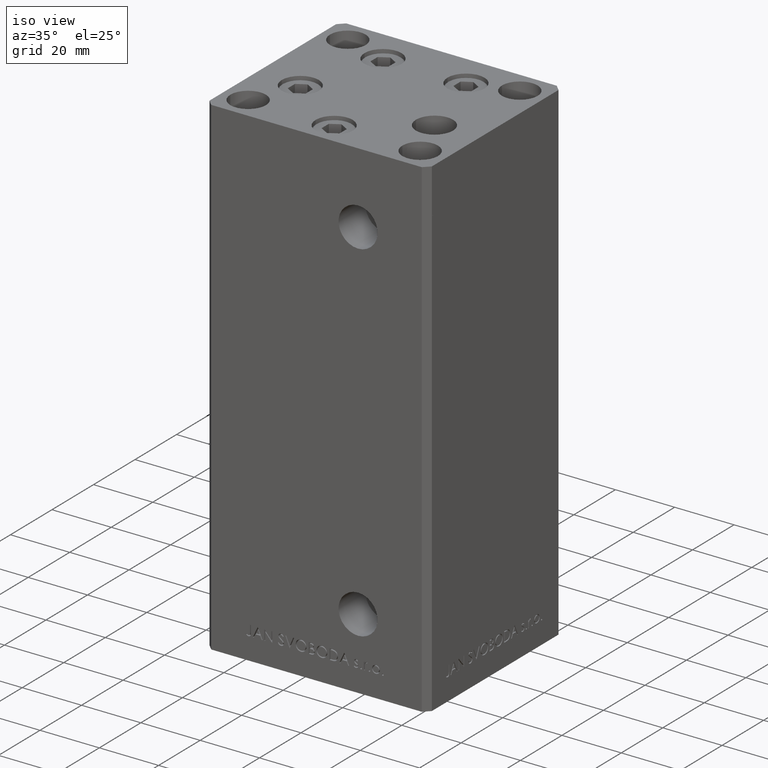
[diagram: clean part render]
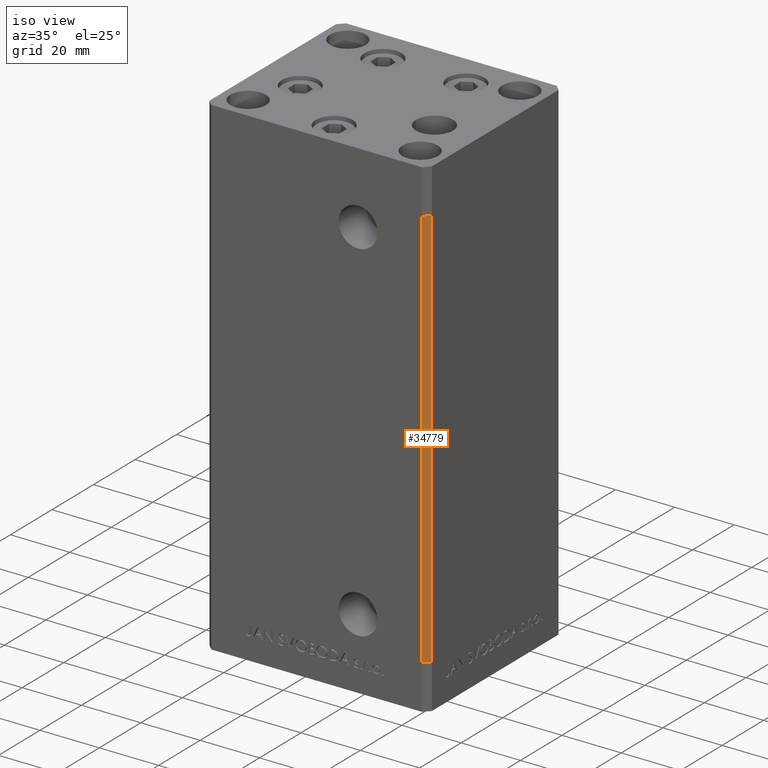
[diagram: same view with one face highlighted and labeled with its STEP entity id]
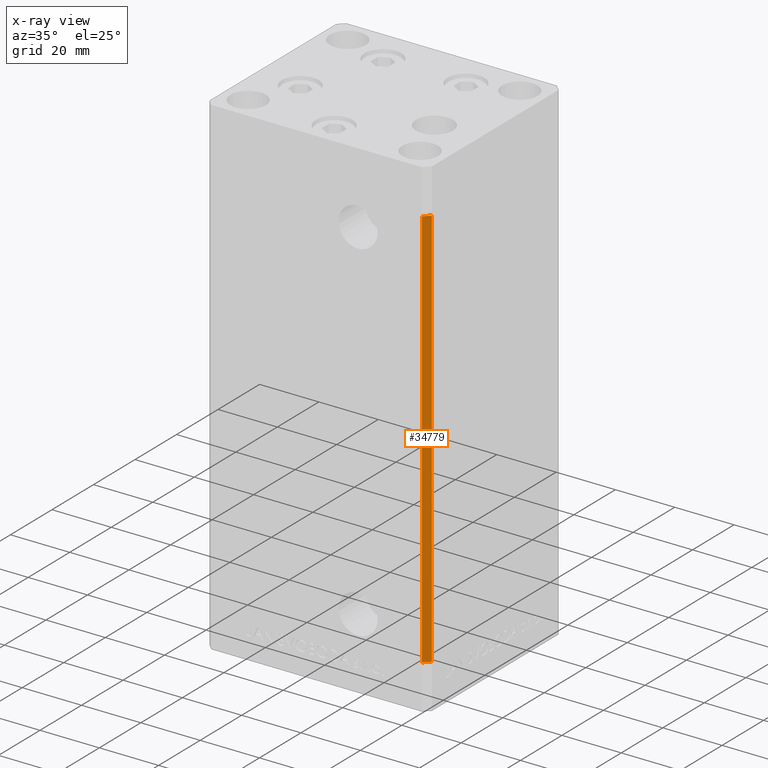
[diagram: x-ray of the same camera — body ghosted, the highlighted face saturated]
A machine part, iso view. The second image highlights one B-rep face of the part: STEP entity #34779.
The next image is the same camera in x-ray: the body ghosted, the highlighted face saturated — about 0% of this face is hidden behind the body in this view.
In plain terms, the highlighted planar face has unit normal (0.7071, -0.7071, 0).
Its self-contained STEP definition (entity closure, byte-faithful):
#341 = PLANE ( 'NONE',  #41028 ) ;
#2957 = VECTOR ( 'NONE', #5416, 1000.000000000000114 ) ;
#4874 = LINE ( 'NONE', #21178, #11842 ) ;
#5416 = DIRECTION ( 'NONE',  ( -0.7071067811865474617, -0.7071067811865474617, 0.000000000000000000 ) ) ;
#5868 = CARTESIAN_POINT ( 'NONE',  ( 35.49999999999999289, -32.50000000000000000, 136.0000000000000000 ) ) ;
#7670 = EDGE_CURVE ( 'NONE', #32386, #17274, #33732, .T. ) ;
#10464 = CARTESIAN_POINT ( 'NONE',  ( 37.49999999999999289, -30.50000000000000000, 0.000000000000000000 ) ) ;
#11377 = EDGE_LOOP ( 'NONE', ( #27302, #38200, #15166, #48495 ) ) ;
#11842 = VECTOR ( 'NONE', #16908, 1000.000000000000000 ) ;
#15166 = ORIENTED_EDGE ( 'NONE', *, *, #25084, .T. ) ;
#16908 = DIRECTION ( 'NONE',  ( -0.000000000000000000, -0.000000000000000000, -1.000000000000000000 ) ) ;
#17274 = VERTEX_POINT ( 'NONE', #18689 ) ;
#17743 = DIRECTION ( 'NONE',  ( -0.7071067811865474617, -0.7071067811865474617, 0.000000000000000000 ) ) ;
#18689 = CARTESIAN_POINT ( 'NONE',  ( 35.49999999999999289, -32.50000000000000000, 0.000000000000000000 ) ) ;
#19688 = DIRECTION ( 'NONE',  ( 0.7071067811865474617, 0.7071067811865474617, 0.000000000000000000 ) ) ;
#20845 = CARTESIAN_POINT ( 'NONE',  ( 35.49999999999999289, -32.50000000000000000, 136.0000000000000000 ) ) ;
#20981 = LINE ( 'NONE', #47848, #2957 ) ;
#21178 = CARTESIAN_POINT ( 'NONE',  ( 37.49999999999999289, -30.50000000000000000, 136.0000000000000000 ) ) ;
#25084 = EDGE_CURVE ( 'NONE', #47209, #32386, #20981, .T. ) ;
#26249 = EDGE_CURVE ( 'NONE', #47209, #34181, #4874, .T. ) ;
#27302 = ORIENTED_EDGE ( 'NONE', *, *, #39723, .F. ) ;
#30251 = CARTESIAN_POINT ( 'NONE',  ( 37.49999999999999289, -30.50000000000000000, 136.0000000000000000 ) ) ;
#32386 = VERTEX_POINT ( 'NONE', #20845 ) ;
#32534 = VECTOR ( 'NONE', #41274, 1000.000000000000000 ) ;
#33732 = LINE ( 'NONE', #5868, #32534 ) ;
#34181 = VERTEX_POINT ( 'NONE', #37224 ) ;
#34779 = ADVANCED_FACE ( 'NONE', ( #46061 ), #341, .T. ) ;
#36205 = VECTOR ( 'NONE', #17743, 1000.000000000000114 ) ;
#37224 = CARTESIAN_POINT ( 'NONE',  ( 37.49999999999999289, -30.50000000000000000, 0.000000000000000000 ) ) ;
#38200 = ORIENTED_EDGE ( 'NONE', *, *, #26249, .F. ) ;
#39723 = EDGE_CURVE ( 'NONE', #34181, #17274, #49118, .T. ) ;
#41028 = AXIS2_PLACEMENT_3D ( 'NONE', #30251, #46558, #19688 ) ;
#41274 = DIRECTION ( 'NONE',  ( -0.000000000000000000, -0.000000000000000000, -1.000000000000000000 ) ) ;
#46061 = FACE_OUTER_BOUND ( 'NONE', #11377, .T. ) ;
#46558 = DIRECTION ( 'NONE',  ( 0.7071067811865475727, -0.7071067811865475727, 0.000000000000000000 ) ) ;
#46882 = CARTESIAN_POINT ( 'NONE',  ( 37.49999999999999289, -30.50000000000000000, 136.0000000000000000 ) ) ;
#47209 = VERTEX_POINT ( 'NONE', #46882 ) ;
#47848 = CARTESIAN_POINT ( 'NONE',  ( 37.49999999999999289, -30.50000000000000000, 136.0000000000000000 ) ) ;
#48495 = ORIENTED_EDGE ( 'NONE', *, *, #7670, .T. ) ;
#49118 = LINE ( 'NONE', #10464, #36205 ) ;